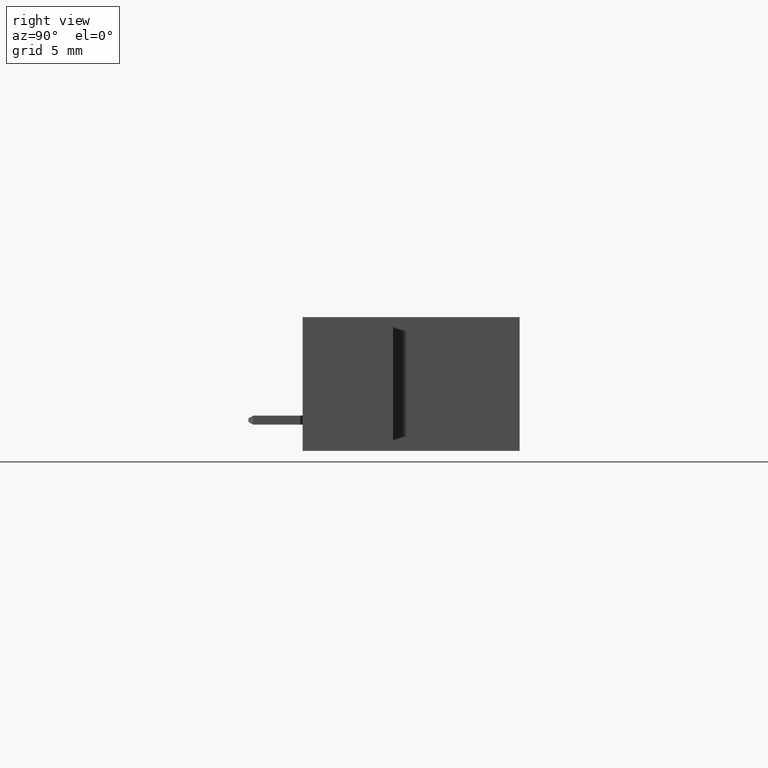
[diagram: clean part render]
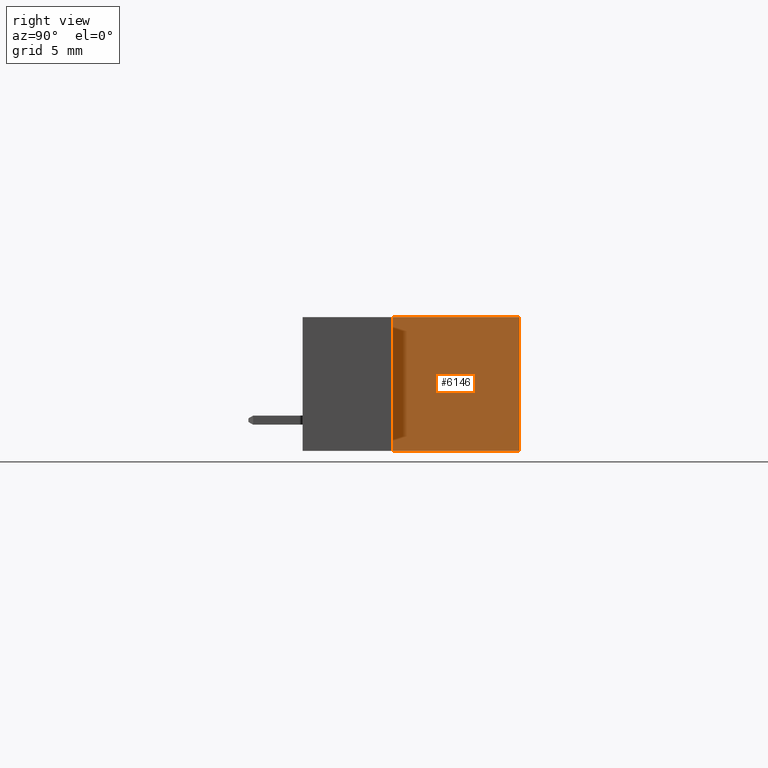
[diagram: same view with one face highlighted and labeled with its STEP entity id]
A machine part, right view. The second image highlights one B-rep face of the part: STEP entity #6146.
In plain terms, the highlighted planar face has unit normal (-1, 0, 0).
Its self-contained STEP definition (entity closure, byte-faithful):
#80 = LINE ( 'NONE', #8338, #3564 ) ;
#755 = ORIENTED_EDGE ( 'NONE', *, *, #6111, .T. ) ;
#758 = DIRECTION ( 'NONE',  ( -1.000000000000000000, 0.0000000000000000000, -0.0000000000000000000 ) ) ;
#842 = LINE ( 'NONE', #10149, #5308 ) ;
#1262 = ORIENTED_EDGE ( 'NONE', *, *, #5163, .F. ) ;
#1319 = VECTOR ( 'NONE', #4441, 39.37007874015748100 ) ;
#1503 = LINE ( 'NONE', #3281, #4876 ) ;
#1833 = VERTEX_POINT ( 'NONE', #6151 ) ;
#1947 = VERTEX_POINT ( 'NONE', #8762 ) ;
#2141 = EDGE_CURVE ( 'NONE', #1833, #3614, #1503, .T. ) ;
#3281 = CARTESIAN_POINT ( 'NONE',  ( 1.544000000000000700, 0.2500000000000000000, 0.0000000000000000000 ) ) ;
#3493 = EDGE_LOOP ( 'NONE', ( #8440, #3606, #1262, #755 ) ) ;
#3564 = VECTOR ( 'NONE', #8411, 39.37007874015748100 ) ;
#3606 = ORIENTED_EDGE ( 'NONE', *, *, #2141, .F. ) ;
#3614 = VERTEX_POINT ( 'NONE', #6974 ) ;
#4041 = CARTESIAN_POINT ( 'NONE',  ( 1.544000000000000700, 0.5999999999999999800, -0.3699999999999999400 ) ) ;
#4304 = EDGE_CURVE ( 'NONE', #8184, #3614, #842, .T. ) ;
#4441 = DIRECTION ( 'NONE',  ( -0.0000000000000000000, -0.0000000000000000000, 1.000000000000000000 ) ) ;
#4453 = CARTESIAN_POINT ( 'NONE',  ( 1.544000000000000700, 0.2500000000000000000, 0.0000000000000000000 ) ) ;
#4554 = AXIS2_PLACEMENT_3D ( 'NONE', #4453, #758, #6829 ) ;
#4876 = VECTOR ( 'NONE', #8873, 39.37007874015748100 ) ;
#5152 = CARTESIAN_POINT ( 'NONE',  ( 1.544000000000000700, 0.2500000000000000000, 0.0000000000000000000 ) ) ;
#5163 = EDGE_CURVE ( 'NONE', #1947, #1833, #9815, .T. ) ;
#5308 = VECTOR ( 'NONE', #7689, 39.37007874015748100 ) ;
#6111 = EDGE_CURVE ( 'NONE', #1947, #8184, #80, .T. ) ;
#6146 = ADVANCED_FACE ( 'NONE', ( #8057 ), #7679, .F. ) ;
#6151 = CARTESIAN_POINT ( 'NONE',  ( 1.544000000000000700, 0.2500000000000000000, 0.0000000000000000000 ) ) ;
#6829 = DIRECTION ( 'NONE',  ( -0.0000000000000000000, 0.0000000000000000000, 1.000000000000000000 ) ) ;
#6974 = CARTESIAN_POINT ( 'NONE',  ( 1.544000000000000700, 0.5999999999999999800, 0.0000000000000000000 ) ) ;
#7679 = PLANE ( 'NONE',  #4554 ) ;
#7689 = DIRECTION ( 'NONE',  ( -0.0000000000000000000, -0.0000000000000000000, 1.000000000000000000 ) ) ;
#8057 = FACE_OUTER_BOUND ( 'NONE', #3493, .T. ) ;
#8184 = VERTEX_POINT ( 'NONE', #4041 ) ;
#8338 = CARTESIAN_POINT ( 'NONE',  ( 1.544000000000000700, 0.2500000000000000000, -0.3699999999999999400 ) ) ;
#8411 = DIRECTION ( 'NONE',  ( -0.0000000000000000000, 1.000000000000000000, -0.0000000000000000000 ) ) ;
#8440 = ORIENTED_EDGE ( 'NONE', *, *, #4304, .T. ) ;
#8762 = CARTESIAN_POINT ( 'NONE',  ( 1.544000000000000700, 0.2500000000000000000, -0.3699999999999999400 ) ) ;
#8873 = DIRECTION ( 'NONE',  ( -0.0000000000000000000, 1.000000000000000000, -0.0000000000000000000 ) ) ;
#9815 = LINE ( 'NONE', #5152, #1319 ) ;
#10149 = CARTESIAN_POINT ( 'NONE',  ( 1.544000000000000700, 0.5999999999999999800, 0.0000000000000000000 ) ) ;